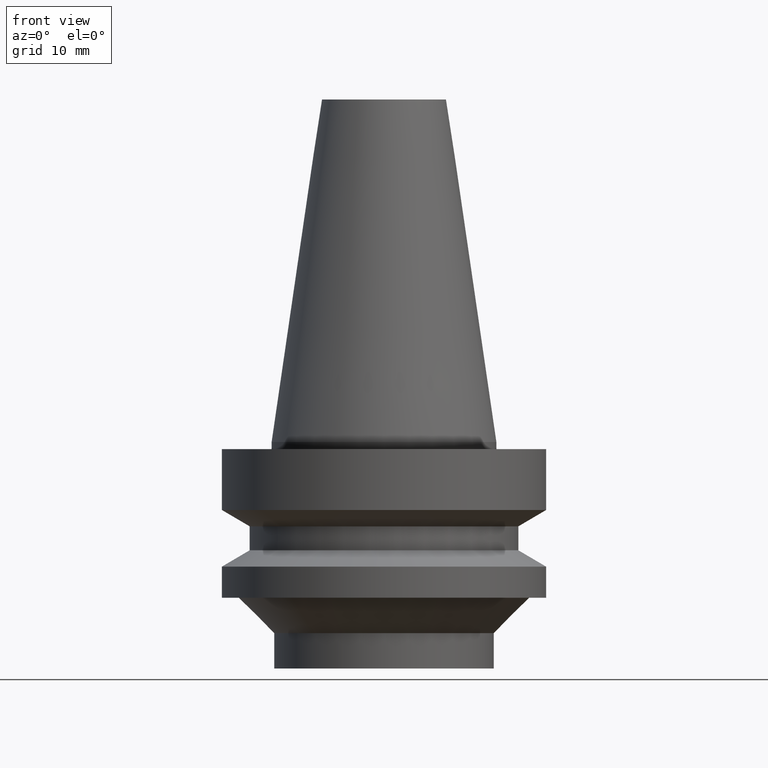
[diagram: clean part render]
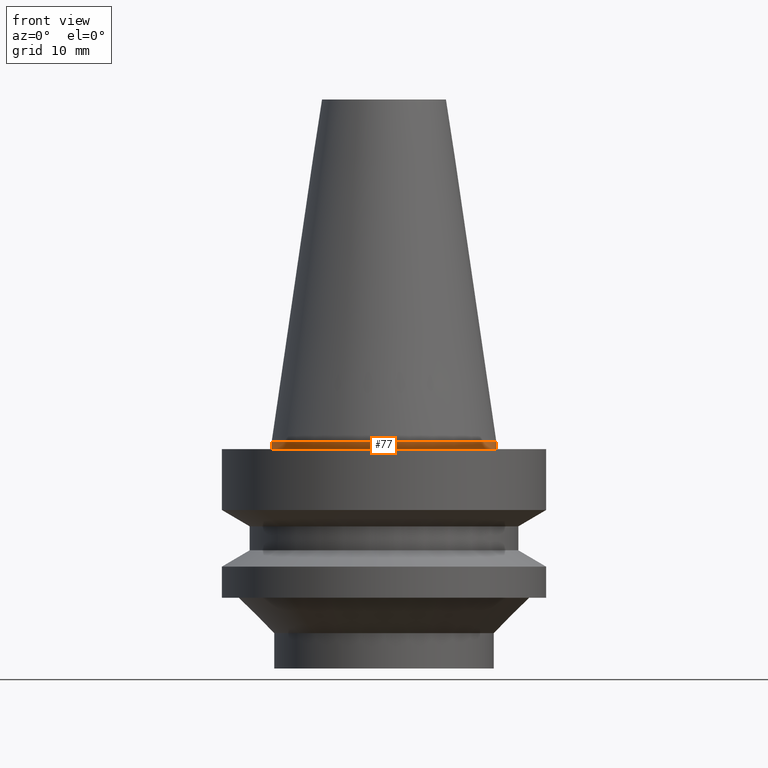
[diagram: same view with one face highlighted and labeled with its STEP entity id]
A machine part, front view. The second image highlights one B-rep face of the part: STEP entity #77.
In plain terms, the highlighted cylindrical surface (bore or boss wall) has radius 15.875 mm, axis along (-0, -0, 1).
Its self-contained STEP definition (entity closure, byte-faithful):
#77=ADVANCED_FACE('',(#94,#95),#96,.T.);
#94=FACE_BOUND('',#131,.T.);
#95=FACE_BOUND('',#132,.T.);
#96=CYLINDRICAL_SURFACE('',#133,15.875);
#131=EDGE_LOOP('',(#172));
#132=EDGE_LOOP('',(#173));
#133=AXIS2_PLACEMENT_3D('',#174,#175,#176);
#172=ORIENTED_EDGE('',*,*,#228,.F.);
#173=ORIENTED_EDGE('',*,*,#227,.T.);
#174=CARTESIAN_POINT('',(3.06161699786838E-017,6.12323399573676E-017,-0.5));
#175=DIRECTION('',(-6.12323399573677E-017,-1.22464679914714E-016,1.0));
#176=DIRECTION('',(-1.23259516440783E-032,1.0,1.22464679914714E-016));
#227=EDGE_CURVE('',#240,#240,#241,.T.);
#228=EDGE_CURVE('',#242,#242,#243,.T.);
#240=VERTEX_POINT('',#264);
#241=CIRCLE('',#265,15.875);
#242=VERTEX_POINT('',#266);
#243=CIRCLE('',#267,15.875);
#264=CARTESIAN_POINT('',(-1.95674482349743E-031,15.875,1.94412679364642E-015));
#265=AXIS2_PLACEMENT_3D('',#289,#290,#291);
#266=CARTESIAN_POINT('',(6.12323399573675E-017,15.875,-0.999999999999998));
#267=AXIS2_PLACEMENT_3D('',#292,#293,#294);
#289=CARTESIAN_POINT('',(0.0,0.0,0.0));
#290=DIRECTION('',(6.12323399573677E-017,1.22464679914714E-016,-1.0));
#291=DIRECTION('',(-1.23259516440783E-032,1.0,1.22464679914714E-016));
#292=CARTESIAN_POINT('',(6.12323399573677E-017,1.22464679914735E-016,-1.0));
#293=DIRECTION('',(6.12323399573677E-017,1.22464679914714E-016,-1.0));
#294=DIRECTION('',(-1.23259516440783E-032,1.0,1.22464679914714E-016));